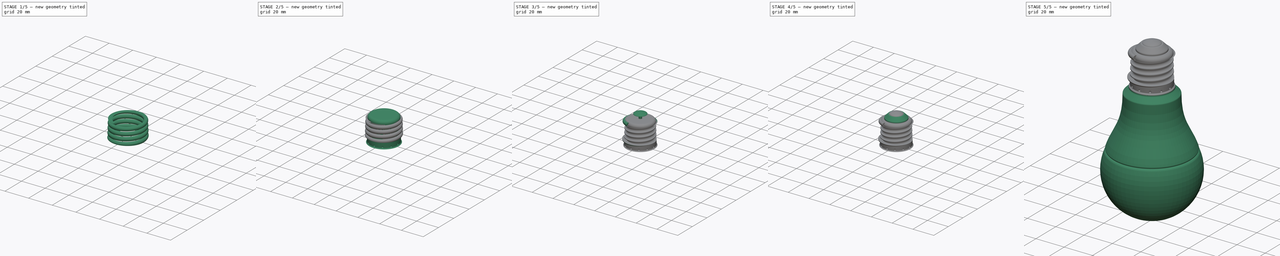
[diagram: build sequence overview — one tinted view per stage of 5, left to right]
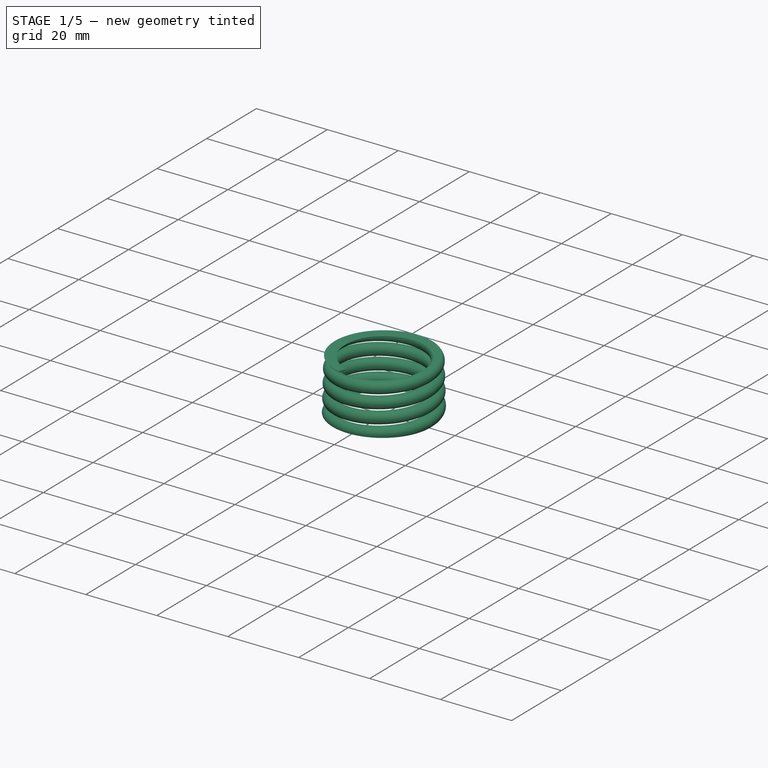
[diagram: stage 1 of 5 — iso view after this stage's code; geometry added in this stage tinted green]
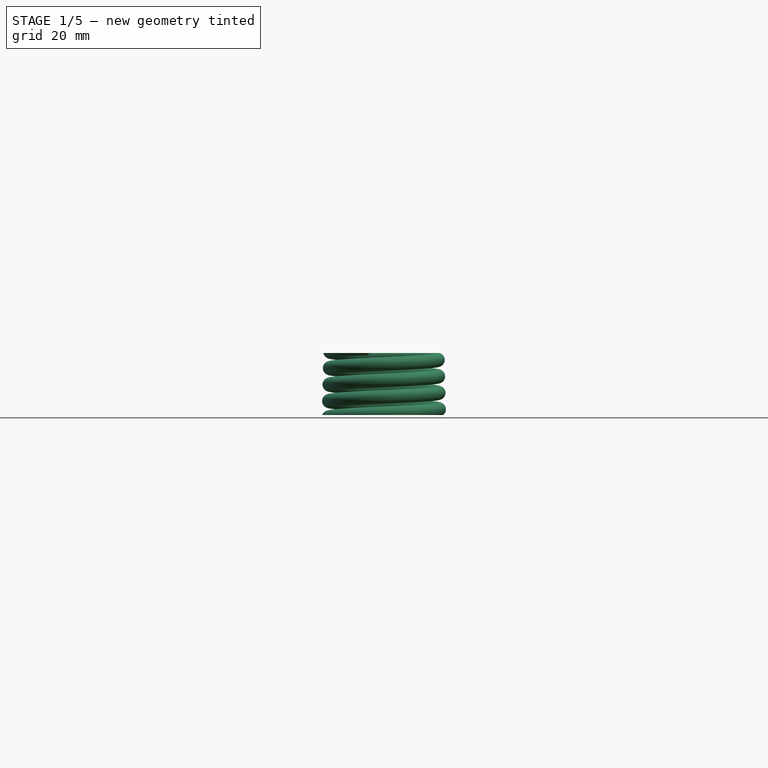
[diagram: stage 1 of 5 — front view after this stage's code; geometry added in this stage tinted green]
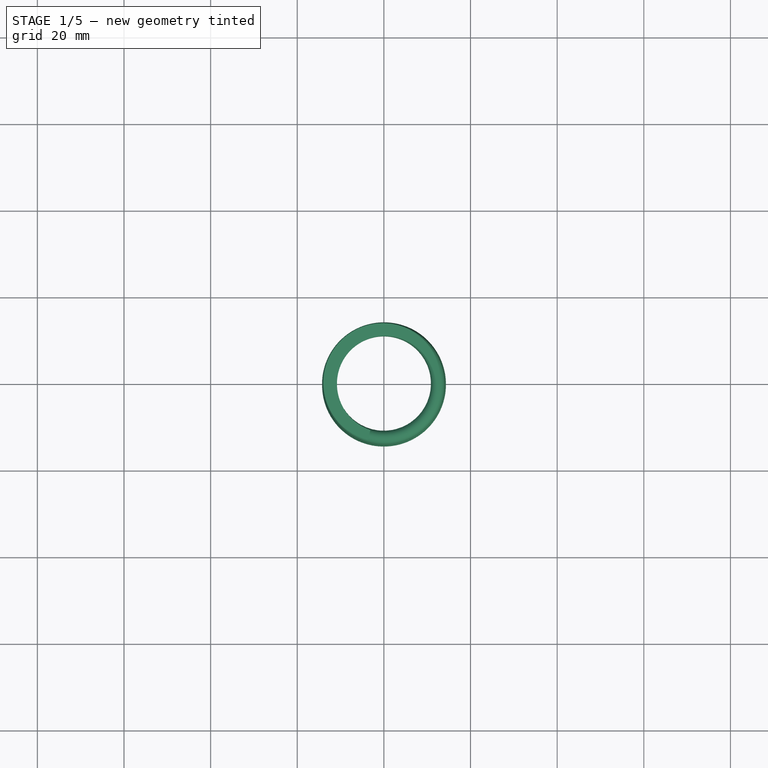
[diagram: stage 1 of 5 — top view after this stage's code; geometry added in this stage tinted green]
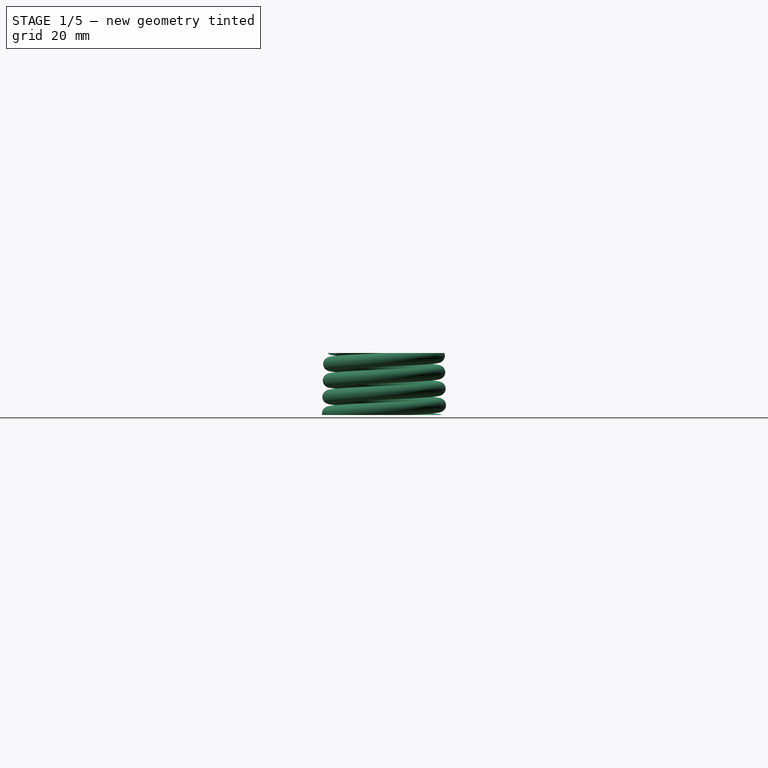
[diagram: stage 1 of 5 — right view after this stage's code; geometry added in this stage tinted green]
FCSTD DOCUMENT  (FreeCAD 0.21R33771 (Git))
Label: lamp1
License: All rights reserved
LicenseURL: http://en.wikipedia.org/wiki/All_rights_reserved
objects: PartDesign::Fillet×11, Sketcher::SketchObject×9, PartDesign::Body×9, App::Part×6, Part::FeaturePython×6, PartDesign::Revolution×5, PartDesign::Chamfer×2, PartDesign::Plane×2, App::DocumentObjectGroup×2, PartDesign::FeatureBase×2, PartDesign::Pocket×1, PartDesign::AdditiveHelix×1, PartDesign::PolarPattern×1, Part::Cut×1
note: 70 computed .brp shape members not serialized (recipe doc carries the construction recipe); baked Part::Feature solids carry a one-line shape summary decoded from their .brp

FEATURE [PartDesign::Body] Body005
  Group = -> [Sketch008,Revolution004,Fillet010,Chamfer001]
  Origin = -> Origin010
  Tip = -> Chamfer001
FEATURE [App::Part] Part004  label="PartKontakt"
  Group = -> [Body005]
  Origin = -> Origin009
FEATURE [PartDesign::Body] Body006  label="rezba"
  Origin = -> Origin011
FEATURE [App::Part] Part002  label="PartCokolj"
  Group = -> [Body003,Body006]
  Origin = -> Origin004
FEATURE [Sketcher::SketchObject] Sketch009
  FullyConstrained = false
  MapMode = 5
  Placement = pos=(0,0,0) rot=(0.57735,0.57735,0.57735;2.0944rad)
  Support = -> [YZ_Plane011]
  sketch-geometry (1):
    g0: Circle CenterX=12.79 CenterY=45.2652 CenterZ=0 NormalX=0 NormalY=0 NormalZ=1 AngleXU=0 Radius=1.6
  constraints (2):
    c: Radius(g0) = 1.6
    c: DistanceX(g-1,g0) = 12.79
FEATURE [PartDesign::AdditiveHelix] AdditiveHelix
  Angle = -1.36
  Axis = (-2e-16,3e-16,1)
  Base = (0,0,0)
  Growth = -0.0902156
  HasBeenEdited = true
  Height = 16.93
  LeftHanded = false
  Mode = 0
  Outside = false
  Pitch = 3.8
  Placement = pos=(0,0,0) rot=(1,1,1;2.0944rad)
  Profile = -> Sketch009
  ReferenceAxis = -> Sketch009 [V_Axis]
  Refine = true
  Turns = 4.45526
FEATURE [PartDesign::Plane] DatumPlane
  AttachmentOffset = pos=(0,0,61.1) rot=(0,0,1;0rad)
  Length = 60
  MapMode = 5
  Placement = pos=(0,0,61.1) rot=(0,0,1;0rad)
  ResizeMode = 0
  Support = -> [XY_Plane011]
  Width = 60
FEATURE [PartDesign::Plane] DatumPlane001
  AttachmentOffset = pos=(0,0,46.8) rot=(0,0,1;0rad)
  Length = 60
  MapMode = 5
  Placement = pos=(0,0,46.8) rot=(0,0,1;0rad)
  ResizeMode = 0
  Support = -> [XY_Plane011]
  Width = 60
FEATURE [Part::FeaturePython] Slice  # WARN: FeaturePython — macro-defined, semantics opaque (R4)
  Base = -> AdditiveHelix
  Mode = 1
  Tolerance = 0
  Tools = -> [DatumPlane]
FEATURE [Part::FeaturePython] Slice_child0  label="Slice.0"  # WARN: FeaturePython — macro-defined, semantics opaque (R4)
  Base = -> Slice
  FilterType = 1
  Invert = false
  OverrideMaxVal = 0
  WindowFrom = 80
  WindowTo = 100
  items = 0
FEATURE [App::DocumentObjectGroup] GrExplode_Slice  label="Exploded Slice"
  Group = -> [Slice_child0,Slice_child1]
FEATURE [Part::FeaturePython] Slice001  # WARN: FeaturePython — macro-defined, semantics opaque (R4)
  Base = -> Slice_child0
  Mode = 1
  Tolerance = 0
  Tools = -> [DatumPlane001]
FEATURE [App::DocumentObjectGroup] GrExplode_Slice001  label="Exploded Slice001"
  Group = -> [Slice001_child0]
FEATURE [Part::FeaturePython] Slice001_child1  label="Slice001.1"  # WARN: FeaturePython — macro-defined, semantics opaque (R4)
  Base = -> Slice001
  FilterType = 1
  Invert = false
  OverrideMaxVal = 0
  WindowFrom = 80
  WindowTo = 100
  items = 1
FEATURE [PartDesign::Body] PolarPatternBody
  BaseFeature = -> Body002
  Group = -> [BaseFeature,PolarPattern]
  Origin = -> Origin013
  Tip = -> PolarPattern
FEATURE [PartDesign::FeatureBase] BaseFeature001
  BaseFeature = -> Slice001_child1
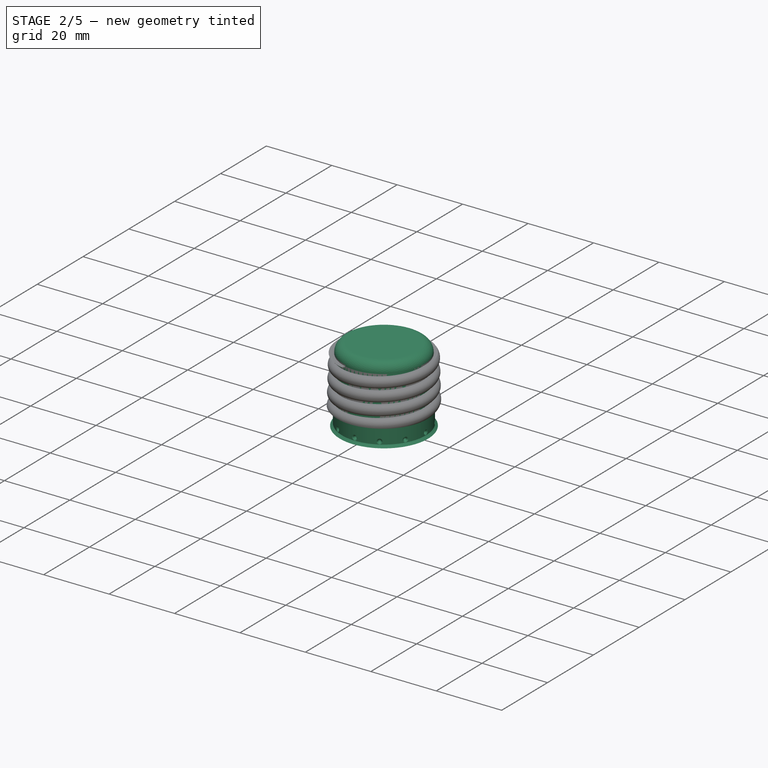
[diagram: stage 2 of 5 — iso view after this stage's code; geometry added in this stage tinted green]
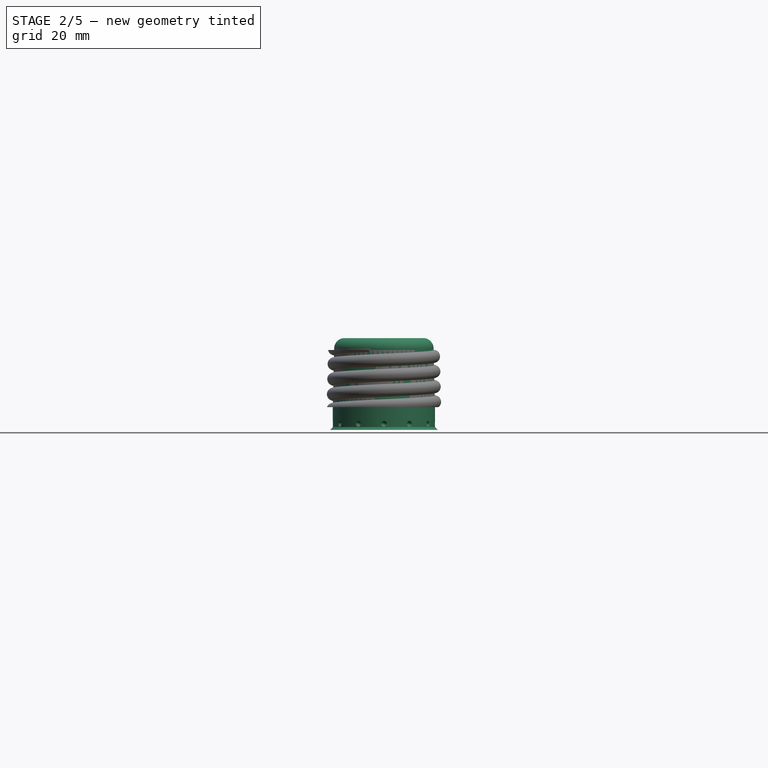
[diagram: stage 2 of 5 — front view after this stage's code; geometry added in this stage tinted green]
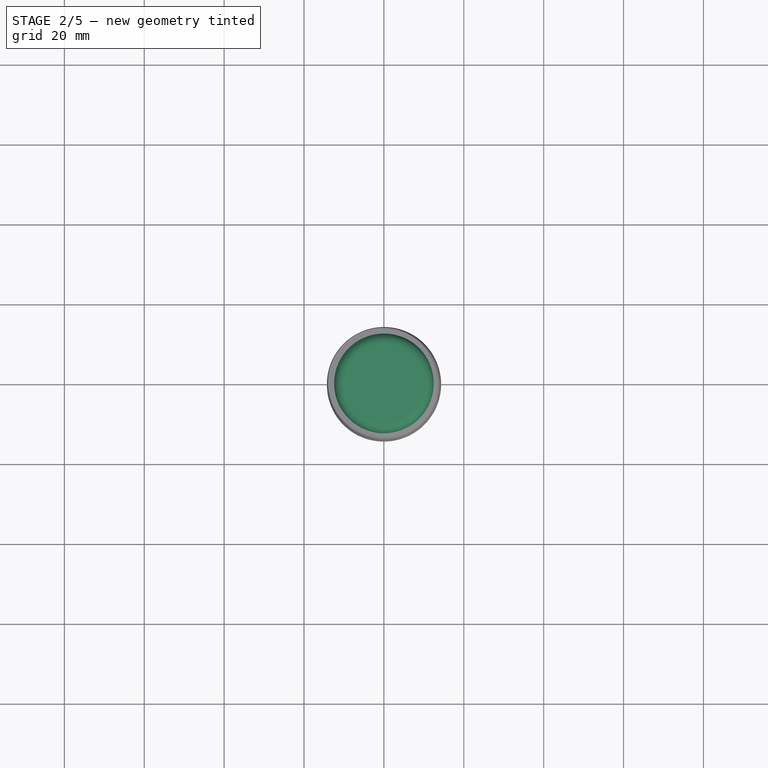
[diagram: stage 2 of 5 — top view after this stage's code; geometry added in this stage tinted green]
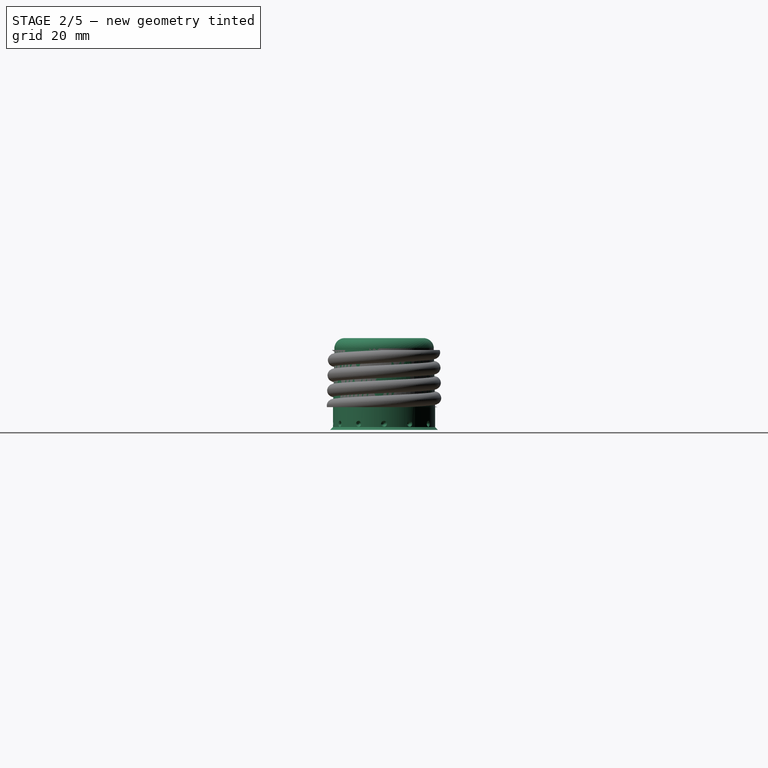
[diagram: stage 2 of 5 — right view after this stage's code; geometry added in this stage tinted green]
FEATURE [PartDesign::Body] Body  label="telo"
  Group = -> [Sketch,Revolution,Fillet001,Fillet002,Fillet003]
  Origin = -> Origin
  Tip = -> Fillet003
FEATURE [App::Part] Part001  label="PartTelo"
  Group = -> [Body]
  Origin = -> Origin003
FEATURE [Sketcher::SketchObject] Sketch003
  FullyConstrained = false
  MapMode = 5
  Placement = pos=(0,0,0) rot=(1,0,0;1.5708rad)
  Support = -> [XZ_Plane005]
  sketch-geometry (9):
    g0: LineSegment StartX=0 StartY=64.0773 StartZ=0 EndX=0 EndY=41.0773 EndZ=0
    g1: LineSegment StartX=0 StartY=41.0773 StartZ=0 EndX=-13.5 EndY=41.0773 EndZ=0
    g2: LineSegment StartX=-13.5 StartY=41.0773 StartZ=0 EndX=-12.7929 EndY=41.7844 EndZ=0
    g3: LineSegment StartX=-12.7929 StartY=41.7844 StartZ=0 EndX=-12.7929 EndY=46.7844 EndZ=0
    g4: LineSegment StartX=-12.7929 StartY=46.7844 StartZ=0 EndX=-12.45 EndY=61.0773 EndZ=0
    g5: LineSegment StartX=0 StartY=64.0773 StartZ=0 EndX=-9.85769 EndY=64.0773 EndZ=0
    g6: LineSegment StartX=-12.45 StartY=61.485 StartZ=0 EndX=-12.45 EndY=61.0773 EndZ=0
    g7: ArcOfCircle CenterX=-9.85769 CenterY=61.485 CenterZ=0 NormalX=0 NormalY=0 NormalZ=1 AngleXU=0 Radius=2.59231 StartAngle=1.5708 EndAngle=3.14159
    g8: GeomPoint X=-12.45 Y=64.0773 Z=0
  constraints (23):
    c: Vertical(g0)
    c: DistanceY(g0,g0) = 23
    c: Coincident(g1,g0)
    c: Horizontal(g1)
    c: DistanceX(g1,g1) = 13.5
    c: Coincident(g2,g1)
    c: Angle(g1,g2) = 0.785398
    c: Coincident(g3,g2)
    c: Vertical(g3)
    c: DistanceY(g3,g3) = 5
    c: Coincident(g4,g3)
    c: Coincident(g5,g0)
    c: Horizontal(g5)
    c: DistanceX(g8,g5) = 12.45
    c: Vertical(g6)
    c: DistanceY(g6,g8) = 3
    c: PointOnObject(g8,g6)
    c: PointOnObject(g8,g5)
    c: Tangent(g6,g7) = -1.5708
    c: Tangent(g5,g7) = -1.5708
    c: Coincident(g4,g6)
    c: Distance(g2) = 1
    c: PointOnObject(g0,g-2)
FEATURE [PartDesign::Revolution] Revolution002
  Angle = 360
  Axis = (0,-2e-16,1)
  Base = (0,0,0)
  Placement = pos=(0,0,0) rot=(1,0,0;1.5708rad)
  Profile = -> Sketch003
  ReferenceAxis = -> Sketch003 [V_Axis]
  Refine = true
FEATURE [Sketcher::SketchObject] Sketch004  label="kernSketch"
  AttachmentOffset = pos=(0,0,31) rot=(0,0,1;0rad)
  FullyConstrained = false
  MapMode = 5
  Placement = pos=(0,-31,-6.9e-15) rot=(1,0,0;1.5708rad)
  Support = -> [XZ_Plane006]
  sketch-geometry (1):
    g0: Circle CenterX=0 CenterY=42.9589 CenterZ=0 NormalX=0 NormalY=0 NormalZ=1 AngleXU=0 Radius=0.5
  constraints (2):
    c: PointOnObject(g0,g-2)
    c: Radius(g0) = 0.5
FEATURE [PartDesign::Body] Body003  label="kernovka"
  Group = -> [Sketch004]
  Origin = -> Origin006
FEATURE [Sketcher::SketchObject] Sketch005
  AttachmentOffset = pos=(0,0,21) rot=(0,0,1;0rad)
  FullyConstrained = false
  MapMode = 5
  Placement = pos=(21,-4.7e-15,4.7e-15) rot=(0.57735,0.57735,0.57735;2.0944rad)
  Support = -> [YZ_Plane005]
  sketch-geometry (1):
    g0: Circle CenterX=-0.00418666 CenterY=42.6112 CenterZ=0 NormalX=0 NormalY=0 NormalZ=1 AngleXU=0 Radius=0.5
  constraints (1):
    c: Radius(g0) = 0.5
FEATURE [PartDesign::Pocket] Pocket
  BaseFeature = -> Revolution002
  Direction = (-1,2e-16,-3e-16)
  Length = 9
  Length2 = 5
  Placement = pos=(0,0,0) rot=(1,0,0;1.5708rad)
  Profile = -> Sketch005
  ReferenceAxis = -> Sketch005 [N_Axis]
  Refine = true
  Type = 0
FEATURE [PartDesign::Chamfer] Chamfer
  Angle = 45
  Base = -> Pocket [Edge6]
  BaseFeature = -> Pocket
  ChamferType = 0
  FlipDirection = false
  Placement = pos=(0,0,0) rot=(1,0,0;1.5708rad)
  Refine = true
  Size = 0.25
  Size2 = 1
  SupportTransform = false
  UseAllEdges = false
FEATURE [PartDesign::Fillet] Fillet004
  Base = -> Chamfer [Face8]
  BaseFeature = -> Chamfer
  Placement = pos=(0,0,0) rot=(1,0,0;1.5708rad)
  Radius = 0.5
  Refine = true
  SupportTransform = false
  UseAllEdges = false
FEATURE [PartDesign::FeatureBase] BaseFeature
  BaseFeature = -> Body002
FEATURE [PartDesign::PolarPattern] PolarPattern
  Angle = 360
  Axis = -> Z_Axis013
  BaseFeature = -> BaseFeature
  Occurrences = 12
  Originals = -> [Pocket,Chamfer,Fillet004]
  Refine = true
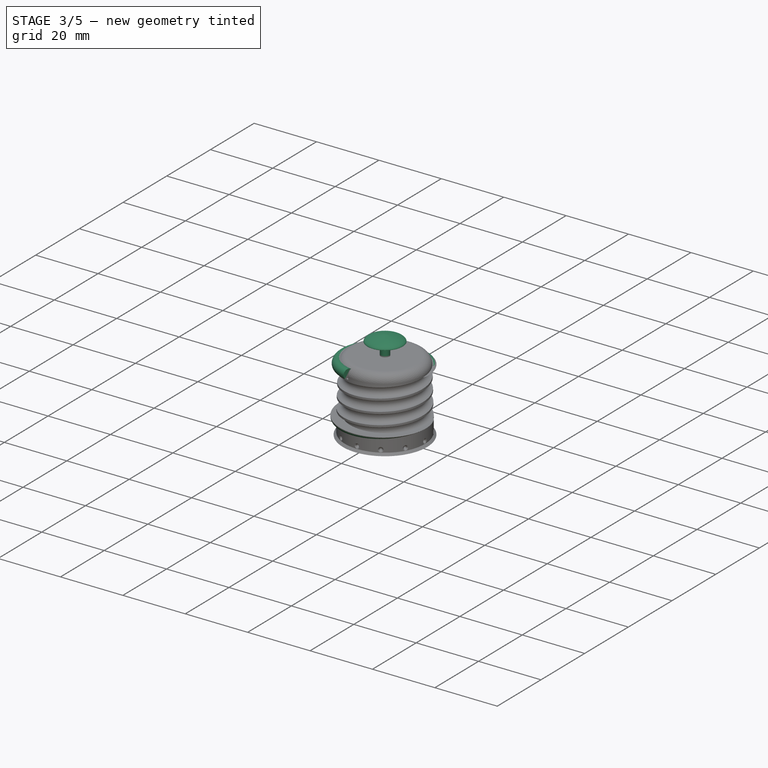
[diagram: stage 3 of 5 — iso view after this stage's code; geometry added in this stage tinted green]
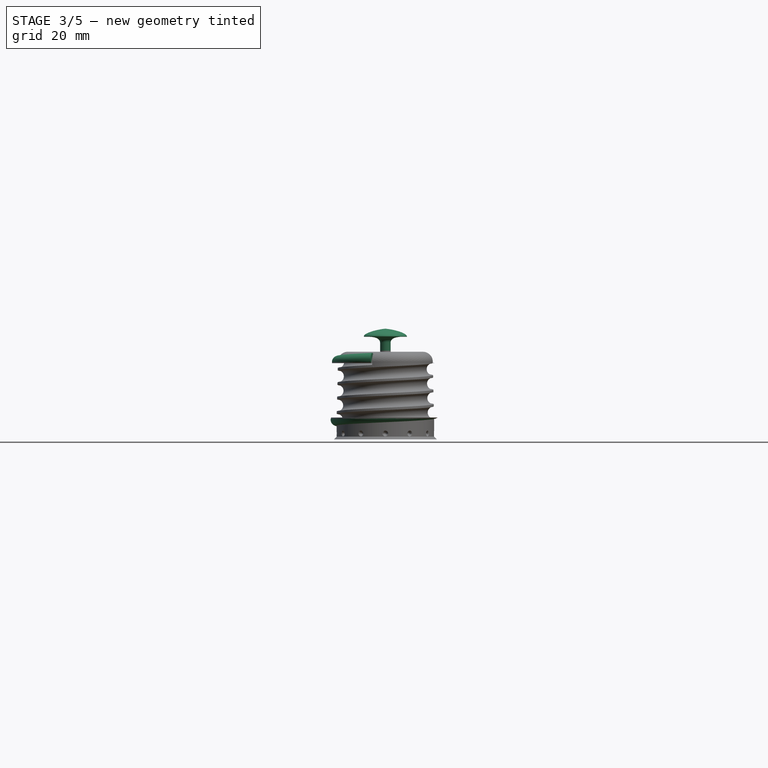
[diagram: stage 3 of 5 — front view after this stage's code; geometry added in this stage tinted green]
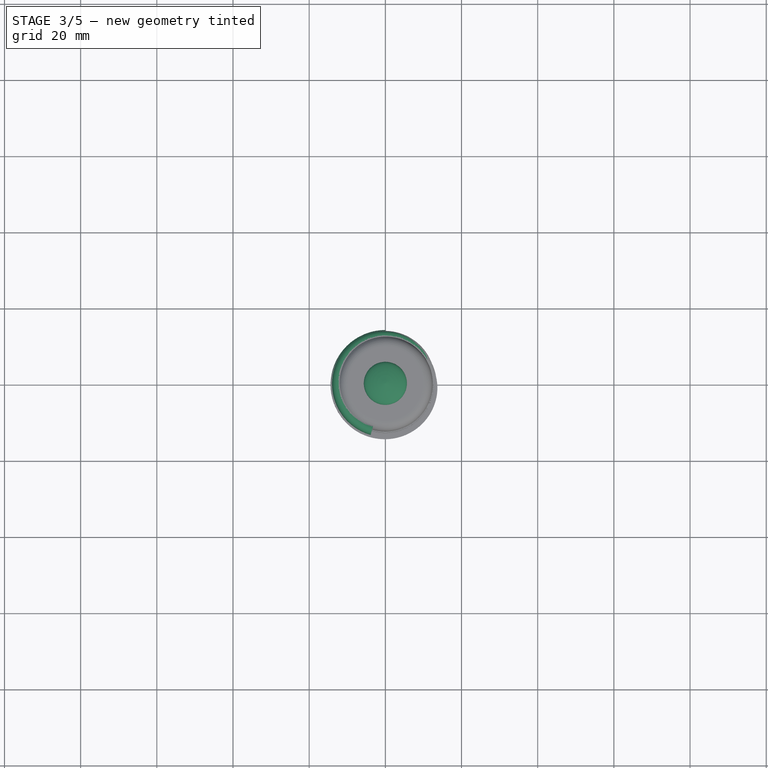
[diagram: stage 3 of 5 — top view after this stage's code; geometry added in this stage tinted green]
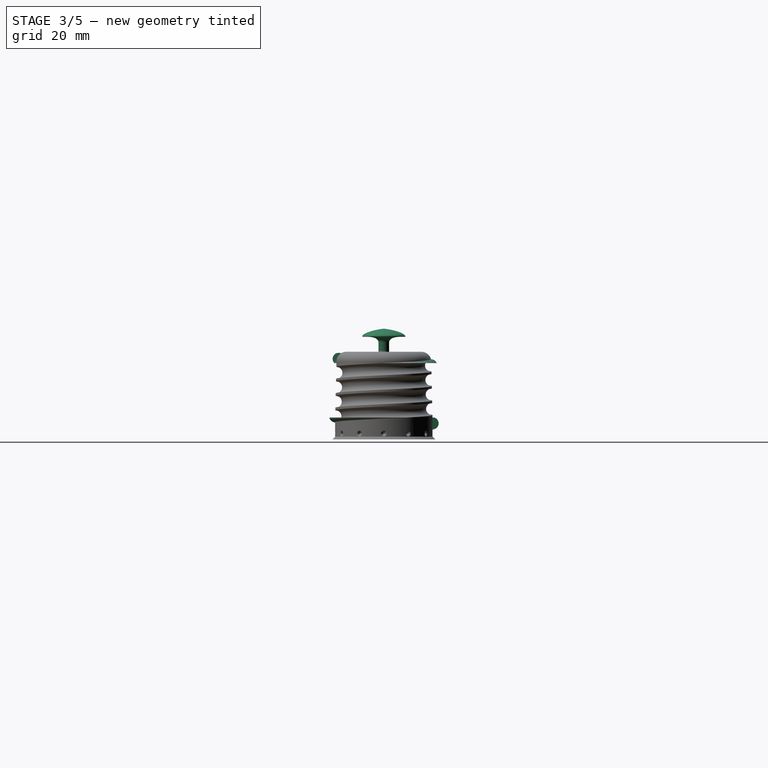
[diagram: stage 3 of 5 — right view after this stage's code; geometry added in this stage tinted green]
FEATURE [Sketcher::SketchObject] Sketch007
  FullyConstrained = true
  MapMode = 5
  Placement = pos=(0,0,0) rot=(1,0,0;1.5708rad)
  Support = -> [XZ_Plane008]
FEATURE [PartDesign::Body] Body004  label="Body"
  Group = -> [Sketch006,Revolution003,Fillet005,Fillet006,Fillet007,Fillet008,Fillet009,Sketch007]
  Origin = -> Origin008
  Tip = -> Fillet009
FEATURE [App::Part] Part003  label="PartPiptik"
  Group = -> [Body004]
  Origin = -> Origin007
FEATURE [Sketcher::SketchObject] Sketch008
  FullyConstrained = false
  MapMode = 5
  Placement = pos=(0,0,0) rot=(1,0,0;1.5708rad)
  Support = -> [XZ_Plane010]
  sketch-geometry (11):
    g0: ArcOfCircle CenterX=0 CenterY=60.0632 CenterZ=0 NormalX=0 NormalY=0 NormalZ=1 AngleXU=0 Radius=1.39308 StartAngle=4.71923 EndAngle=6.28446
    g1: LineSegment StartX=1.39308 StartY=60.065 StartZ=0 EndX=1.38448 EndY=66.8272 EndZ=0
    g2-g5: Circle x4 (B-spline internal-alignment scaffolding for g6; pole/knot coordinates omitted)
    g6: BSplineCurve PolesCount=4 KnotsCount=2 Degree=3 IsPeriodic=0
    g7: GeomPoint X=1.38448 Y=66.8272 Z=0
    g8: GeomPoint X=5.64979 Y=68.0261 Z=0
    g9: ArcOfEllipse CenterX=0.635834 CenterY=68.796 CenterZ=0 NormalX=0 NormalY=0 NormalZ=1 MajorRadius=5.07387 MinorRadius=1.24978 AngleXU=-0.146962 StartAngle=6.26128 EndAngle=8.01545
    g10: LineSegment StartX=0.009527 StartY=70.1357 StartZ=0 EndX=0.009527 EndY=58.6701 EndZ=0
  constraints (14):
    c: Tangent(g0,g1) = -1.5708
    c: PointOnObject(g0,g-2)
    c: Weight(g2) = 1
    c: Coincident(g6,g1)
    c: Equal(g2,g3)
    c: Equal(g2,g4)
    c: Equal(g2,g5)
    c: InternalAlignment(g2-g5 -> g6) x4
    c: InternalAlignment(g7,g6)
    c: InternalAlignment(g8,g6)
    c: Vertical(g10)
    c: Coincident(g0,g10)
    c: Coincident(g9,g6)
    c: Coincident(g10,g9)
FEATURE [PartDesign::Revolution] Revolution004
  Angle = 360
  Axis = (0,2e-16,1)
  Base = (0,0,0)
  Placement = pos=(0,0,0) rot=(1,0,0;1.5708rad)
  Profile = -> Sketch008
  ReferenceAxis = -> Sketch008 [V_Axis]
  Refine = true
  Reversed = true
FEATURE [PartDesign::Fillet] Fillet010
  Base = -> Revolution004 [Edge4]
  BaseFeature = -> Revolution004
  Placement = pos=(0,0,0) rot=(1,0,0;1.5708rad)
  Radius = 1
  Refine = true
  SupportTransform = false
  UseAllEdges = false
FEATURE [PartDesign::Chamfer] Chamfer001
  Angle = 45
  Base = -> Fillet010 [Edge9]
  BaseFeature = -> Fillet010
  ChamferType = 0
  FlipDirection = false
  Placement = pos=(0,0,0) rot=(1,0,0;1.5708rad)
  Refine = true
  Size = 0.05
  Size2 = 1
  SupportTransform = false
  UseAllEdges = false
FEATURE [Part::FeaturePython] Slice_child1  label="Slice.1"  # WARN: FeaturePython — macro-defined, semantics opaque (R4)
  Base = -> Slice
  FilterType = 1
  Invert = false
  OverrideMaxVal = 0
  WindowFrom = 80
  WindowTo = 100
  items = 1
FEATURE [Part::FeaturePython] Slice001_child0  label="Slice001.0"  # WARN: FeaturePython — macro-defined, semantics opaque (R4)
  Base = -> Slice001
  FilterType = 1
  Invert = false
  OverrideMaxVal = 0
  WindowFrom = 80
  WindowTo = 100
  items = 0
FEATURE [PartDesign::Body] Body007
  BaseFeature = -> Slice001_child1
  Group = -> [BaseFeature001]
  Origin = -> Origin014
  Tip = -> BaseFeature001
FEATURE [Part::Cut] Cut
  Base = -> PolarPatternBody
  Refine = true
  Tool = -> Body007
FEATURE [App::Part] Part005
  Group = -> [Slice_child1,DatumPlane001,Slice001_child1,Slice,AdditiveHelix,Slice001_child0,Body002,Body007,Sketch009,Slice_child0,Slice001,DatumPlane,PolarPatternBody,Cut]
  Origin = -> Origin012
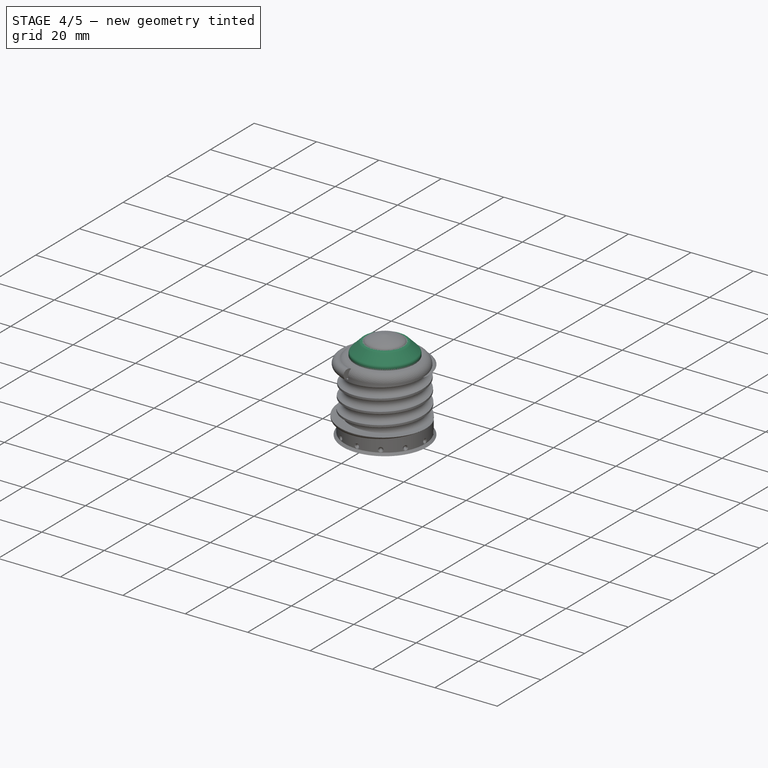
[diagram: stage 4 of 5 — iso view after this stage's code; geometry added in this stage tinted green]
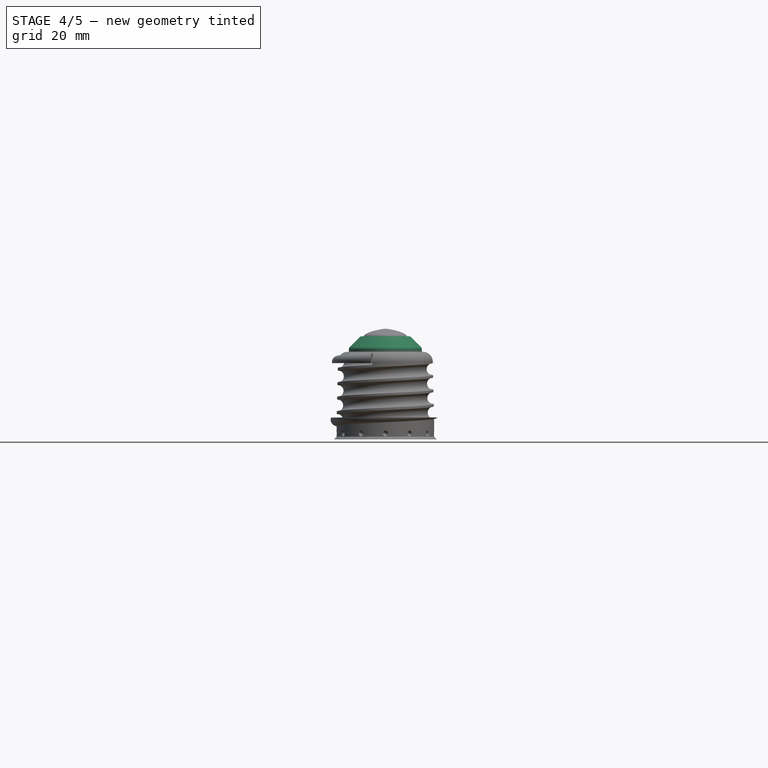
[diagram: stage 4 of 5 — front view after this stage's code; geometry added in this stage tinted green]
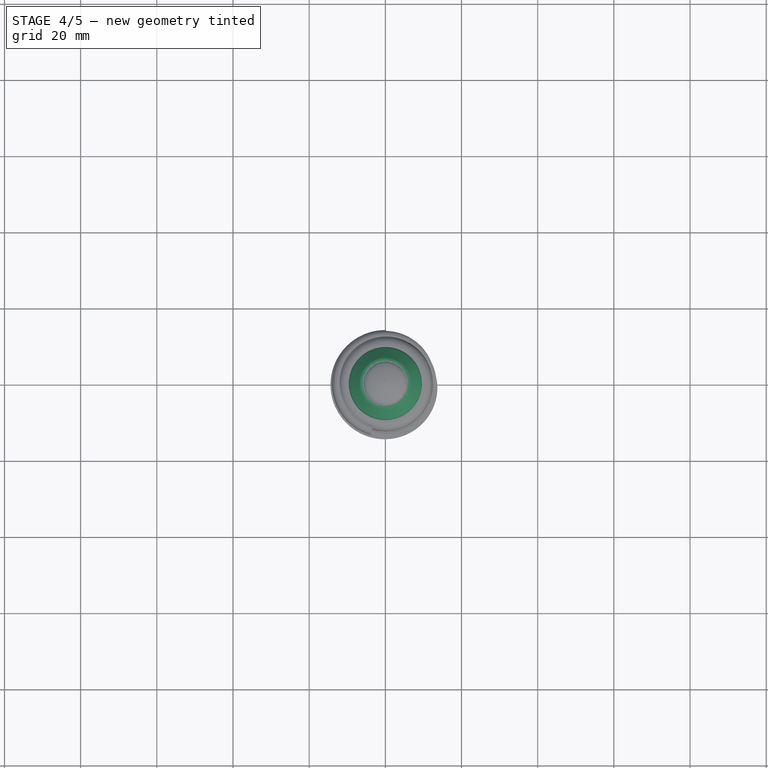
[diagram: stage 4 of 5 — top view after this stage's code; geometry added in this stage tinted green]
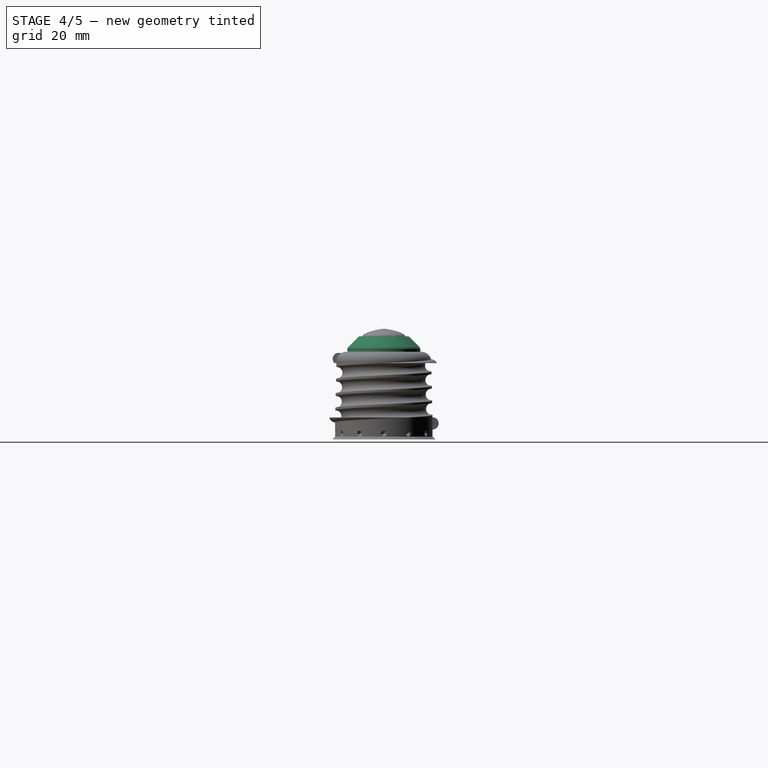
[diagram: stage 4 of 5 — right view after this stage's code; geometry added in this stage tinted green]
FEATURE [PartDesign::Body] Body002  label="cokolj"
  Group = -> [Sketch003,Revolution002,Sketch005,Pocket,Chamfer,Fillet004]
  Origin = -> Origin005
  Tip = -> Fillet004
FEATURE [Sketcher::SketchObject] Sketch006
  FullyConstrained = false
  MapMode = 5
  Placement = pos=(0,0,0) rot=(1,0,0;1.5708rad)
  Support = -> [XZ_Plane008]
  sketch-geometry (9):
    g0: LineSegment StartX=-1.65467 StartY=64.0725 StartZ=0 EndX=-9.58661 EndY=64.0725 EndZ=0
    g1: LineSegment StartX=-9.58661 StartY=64.0725 StartZ=0 EndX=-9.58661 EndY=65.0725 EndZ=0
    g2: LineSegment StartX=-9.58661 StartY=65.0725 StartZ=0 EndX=-6.50108 EndY=68.158 EndZ=0
    g3: LineSegment StartX=-6.50108 StartY=68.158 StartZ=0 EndX=-5.4521 EndY=68.158 EndZ=0
    g4: LineSegment StartX=-5.4521 StartY=68.158 StartZ=0 EndX=-5.4521 EndY=65.5027 EndZ=0
    g5: LineSegment StartX=-5.4521 StartY=65.5027 StartZ=0 EndX=-3.25041 EndY=65.5027 EndZ=0
    g6: LineSegment StartX=-3.25041 StartY=65.5027 StartZ=0 EndX=-3.25041 EndY=67.0989 EndZ=0
    g7: LineSegment StartX=-3.25041 StartY=67.0989 StartZ=0 EndX=-1.65467 EndY=67.0989 EndZ=0
    g8: LineSegment StartX=-1.65467 StartY=67.0989 StartZ=0 EndX=-1.65467 EndY=64.0725 EndZ=0
  constraints (19):
    c: Horizontal(g0)
    c: Coincident(g2,g1)
    c: Coincident(g3,g2)
    c: Horizontal(g3)
    c: Vertical(g1)
    c: Coincident(g1,g0)
    c: DistanceY(g1,g1) = 1
    c: Angle(g1,g2) = 2.35619
    c: Vertical(g4)
    c: Horizontal(g5)
    c: Coincident(g5,g4)
    c: Coincident(g6,g5)
    c: Vertical(g6)
    c: Horizontal(g7)
    c: Vertical(g8)
    c: Coincident(g3,g4)
    c: Coincident(g0,g8)
    c: Coincident(g8,g7)
    c: Coincident(g7,g6)
FEATURE [PartDesign::Revolution] Revolution003
  Angle = 360
  Axis = (0,2e-16,1)
  Base = (0,0,0)
  Placement = pos=(0,0,0) rot=(1,0,0;1.5708rad)
  Profile = -> Sketch006
  ReferenceAxis = -> Sketch006 [V_Axis]
  Refine = true
FEATURE [PartDesign::Fillet] Fillet005
  Base = -> Revolution003 [Edge5]
  BaseFeature = -> Revolution003
  Placement = pos=(0,0,0) rot=(1,0,0;1.5708rad)
  Radius = 1
  Refine = true
  SupportTransform = false
  UseAllEdges = false
FEATURE [PartDesign::Fillet] Fillet006
  Base = -> Fillet005 [Edge3]
  BaseFeature = -> Fillet005
  Placement = pos=(0,0,0) rot=(1,0,0;1.5708rad)
  Radius = 1
  Refine = true
  SupportTransform = false
  UseAllEdges = false
FEATURE [PartDesign::Fillet] Fillet007
  Base = -> Fillet006 [Edge14]
  BaseFeature = -> Fillet006
  Placement = pos=(0,0,0) rot=(1,0,0;1.5708rad)
  Radius = 1
  Refine = true
  SupportTransform = false
  UseAllEdges = false
FEATURE [PartDesign::Fillet] Fillet008
  Base = -> Fillet007 [Edge17]
  BaseFeature = -> Fillet007
  Placement = pos=(0,0,0) rot=(1,0,0;1.5708rad)
  Radius = 0.2
  Refine = true
  SupportTransform = false
  UseAllEdges = false
FEATURE [PartDesign::Fillet] Fillet009
  Base = -> Fillet008 [Edge8]
  BaseFeature = -> Fillet008
  Placement = pos=(0,0,0) rot=(1,0,0;1.5708rad)
  Radius = 0.2
  Refine = true
  SupportTransform = false
  UseAllEdges = false
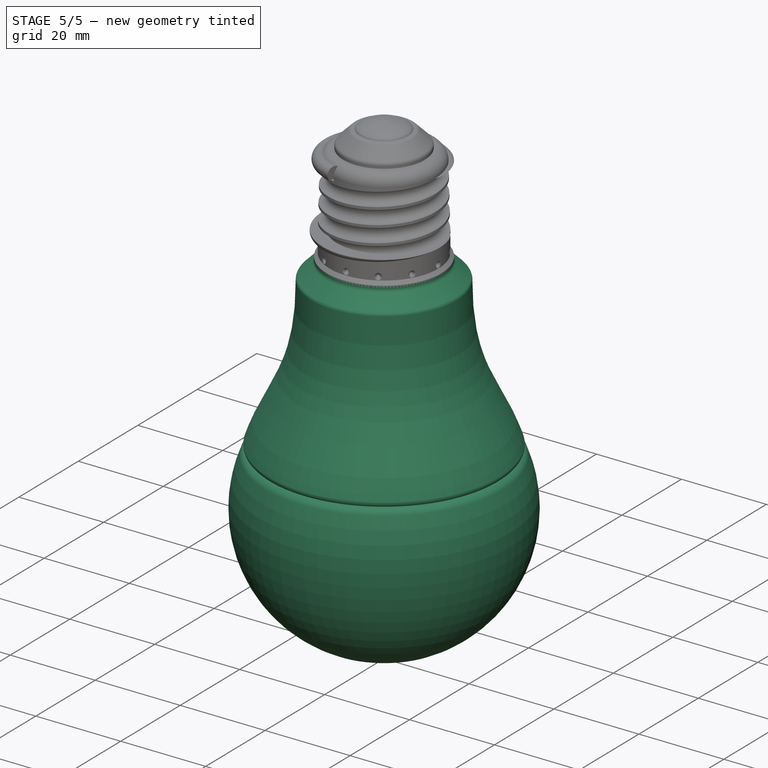
[diagram: stage 5 of 5 — iso view after this stage's code; geometry added in this stage tinted green]
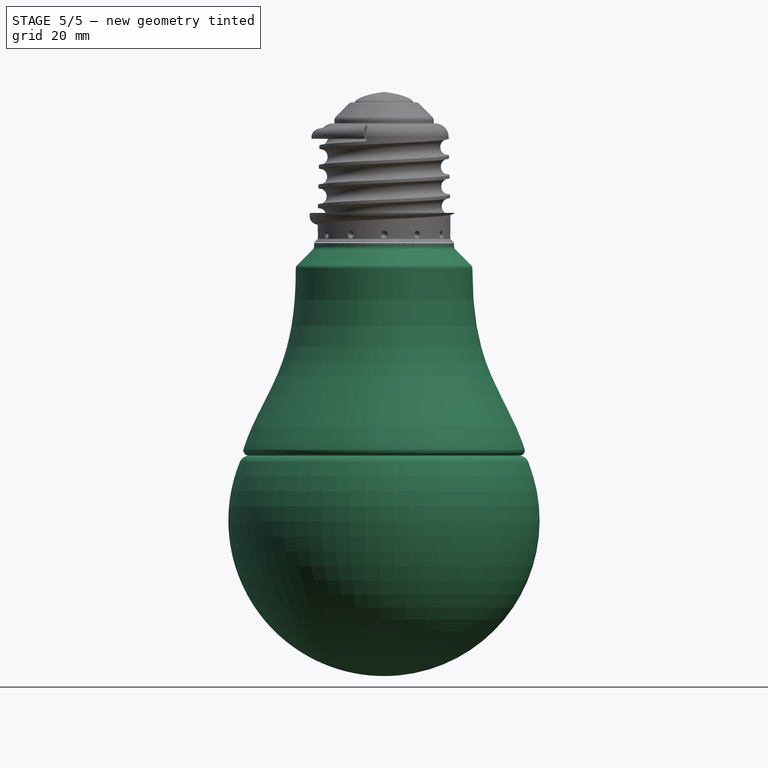
[diagram: stage 5 of 5 — front view after this stage's code; geometry added in this stage tinted green]
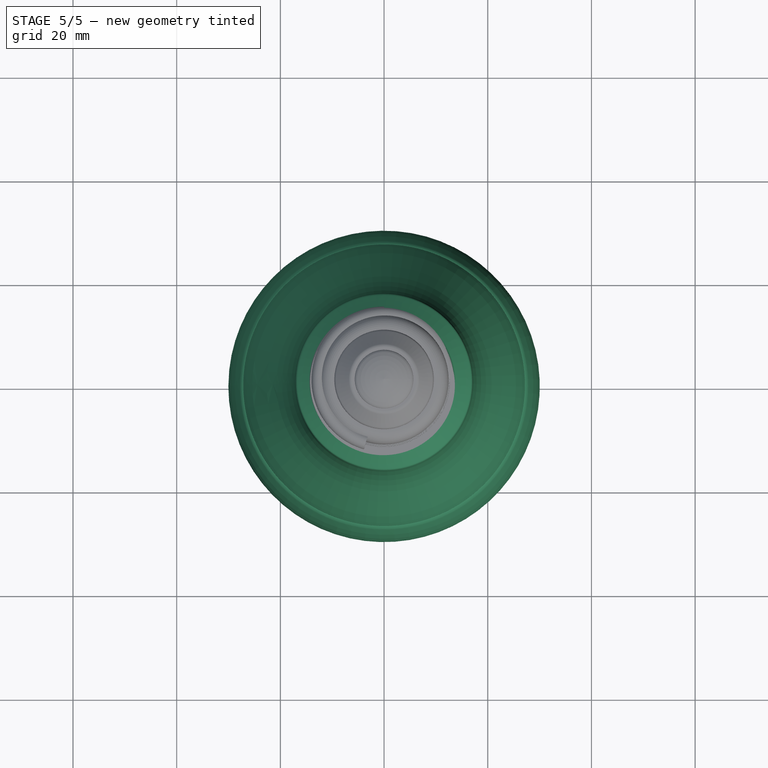
[diagram: stage 5 of 5 — top view after this stage's code; geometry added in this stage tinted green]
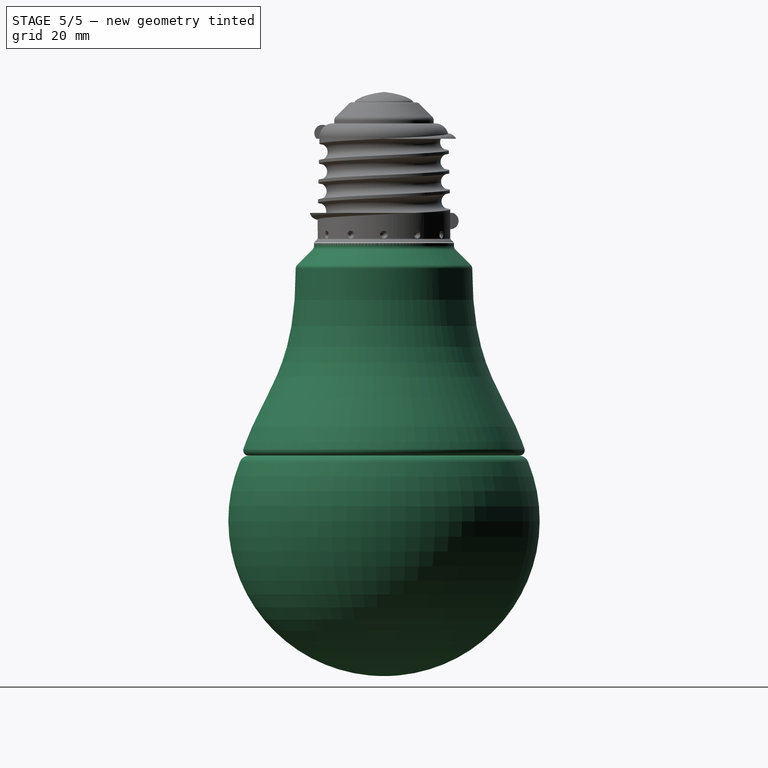
[diagram: stage 5 of 5 — right view after this stage's code; geometry added in this stage tinted green]
FEATURE [Sketcher::SketchObject] Sketch
  FullyConstrained = false
  MapMode = 5
  Placement = pos=(0,0,0) rot=(1,0,0;1.5708rad)
  Support = -> [XZ_Plane]
  sketch-geometry (12):
    g0: LineSegment StartX=0 StartY=41 StartZ=0 EndX=0 EndY=0 EndZ=0
    g1: LineSegment StartX=0 StartY=0 StartZ=0 EndX=-27.5 EndY=0 EndZ=0
    g2: LineSegment StartX=0 StartY=41 StartZ=0 EndX=-13.5 EndY=41 EndZ=0
    g3: LineSegment StartX=-13.5 StartY=41 StartZ=0 EndX=-13.5 EndY=40 EndZ=0
    g4: LineSegment StartX=-13.5 StartY=40 StartZ=0 EndX=-17.0355 EndY=36.4645 EndZ=0
    g5: GeomPoint X=-17.0355 Y=36.4645 Z=0
    g6: GeomPoint X=-27.5 Y=0 Z=0
    g7: BSplineCurve PolesCount=4 KnotsCount=2 Degree=3 IsPeriodic=0
    g8-g11: Circle x4 (B-spline internal-alignment scaffolding for g7; pole/knot coordinates omitted)
  constraints (27):
    c: Vertical(g0)
    c: Coincident(g1,g0)
    c: Horizontal(g1)
    c: DistanceY(g0,g0) = 41
    c: DistanceX(g1,g1) = 27.5
    c: Coincident(g2,g0)
    c: Horizontal(g2)
    c: DistanceX(g2,g2) = 13.5
    c: Coincident(g3,g2)
    c: Vertical(g3)
    c: DistanceY(g3,g3) = 1
    c: Coincident(g4,g3)
    c: Distance(g4) = 5
    c: Angle(g3,g4) = 2.35619
    c: Coincident(g5,g4)
    c: Coincident(g6,g1)
    c: InternalAlignment(g5,g7)
    c: InternalAlignment(g6,g7)
    c: InternalAlignment(g8,g7)
    c: Weight(g8) = 1
    c: InternalAlignment(g9,g7)
    c: Equal(g9,g8)
    c: InternalAlignment(g10,g7)
    c: Equal(g10,g8)
    c: InternalAlignment(g11,g7)
    c: Equal(g11,g8)
    c: Coincident(g0,g-1)
FEATURE [PartDesign::Revolution] Revolution
  Angle = 360
  Axis = (0,-2e-16,1)
  Base = (0,0,0)
  Placement = pos=(0,0,0) rot=(1,0,0;1.5708rad)
  Profile = -> Sketch
  ReferenceAxis = -> Sketch [V_Axis]
  Refine = true
FEATURE [Sketcher::SketchObject] Sketch002
  FullyConstrained = false
  MapMode = 5
  Placement = pos=(0,0,0) rot=(1,0,0;1.5708rad)
  Support = -> [XZ_Plane002]
  sketch-geometry (3):
    g0: ArcOfCircle CenterX=-0.0334463 CenterY=-12.5333 CenterZ=0 NormalX=0 NormalY=0 NormalZ=1 AngleXU=0 Radius=30 StartAngle=2.7106 EndAngle=4.7135
    g1: LineSegment StartX=-27.2899 StartY=1.8e-15 StartZ=0 EndX=-2.13e-14 EndY=1.8e-15 EndZ=0
    g2: LineSegment StartX=-2.13e-14 StartY=1.8e-15 StartZ=0 EndX=-2.13e-14 EndY=-42.5333 EndZ=0
  constraints (7):
    c: Radius(g0) = 30
    c: Coincident(g1,g-1)
    c: Horizontal(g1)
    c: Coincident(g2,g1)
    c: Vertical(g2)
    c: Coincident(g0,g2)
    c: Coincident(g0,g1)
FEATURE [PartDesign::Revolution] Revolution001
  Angle = 360
  Axis = (0,2e-16,1)
  Base = (0,0,0)
  Placement = pos=(0,0,0) rot=(1,0,0;1.5708rad)
  Profile = -> Sketch002
  ReferenceAxis = -> Sketch002 [V_Axis]
  Refine = true
FEATURE [PartDesign::Fillet] Fillet
  Base = -> Revolution001 [Edge1,Edge2,Edge3]
  BaseFeature = -> Revolution001
  Placement = pos=(0,0,0) rot=(1,0,0;1.5708rad)
  Radius = 2
  Refine = true
  SupportTransform = false
  UseAllEdges = true
FEATURE [PartDesign::Body] Body001  label="kolba"
  Group = -> [Sketch002,Revolution001,Fillet]
  Origin = -> Origin002
  Tip = -> Fillet
FEATURE [App::Part] Part  label="PartKolba"
  Group = -> [Body001]
  Origin = -> Origin001
FEATURE [PartDesign::Fillet] Fillet001
  Base = -> Revolution [Edge1]
  BaseFeature = -> Revolution
  Placement = pos=(0,0,0) rot=(1,0,0;1.5708rad)
  Radius = 1
  Refine = true
  SupportTransform = false
  UseAllEdges = false
FEATURE [PartDesign::Fillet] Fillet002
  Base = -> Fillet001 [Edge6]
  BaseFeature = -> Fillet001
  Placement = pos=(0,0,0) rot=(1,0,0;1.5708rad)
  Radius = 1
  Refine = true
  SupportTransform = false
  UseAllEdges = false
FEATURE [PartDesign::Fillet] Fillet003
  Base = -> Fillet002 [Edge3]
  BaseFeature = -> Fillet002
  Placement = pos=(0,0,0) rot=(1,0,0;1.5708rad)
  Radius = 1
  Refine = true
  SupportTransform = false
  UseAllEdges = false
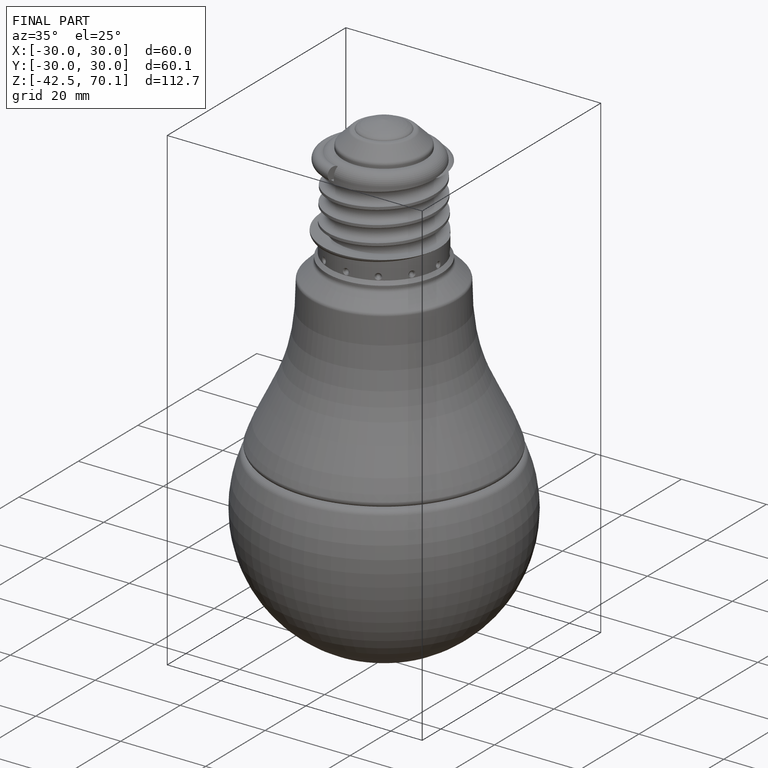
[diagram: finished part — iso view with bounding-box wireframe]
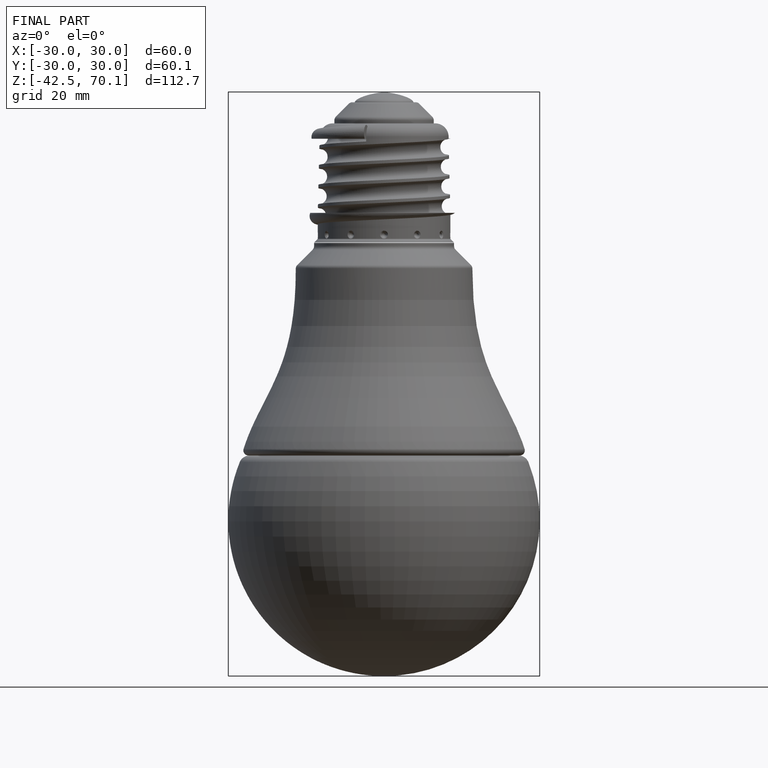
[diagram: finished part — front view with bounding-box wireframe]
